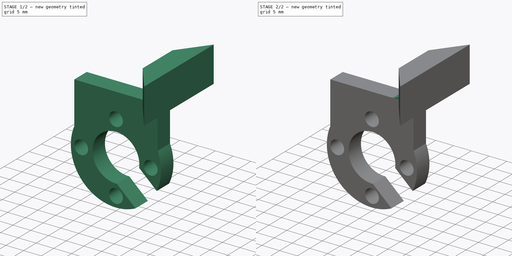
[diagram: build sequence overview — one tinted view per stage of 2, left to right]
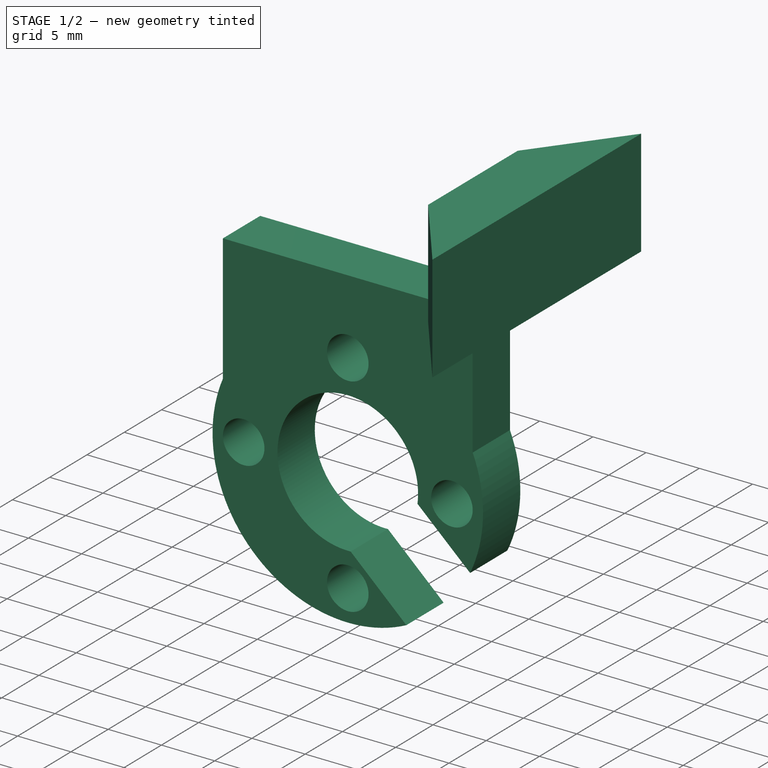
[diagram: stage 1 of 2 — iso view after this stage's code; geometry added in this stage tinted green]
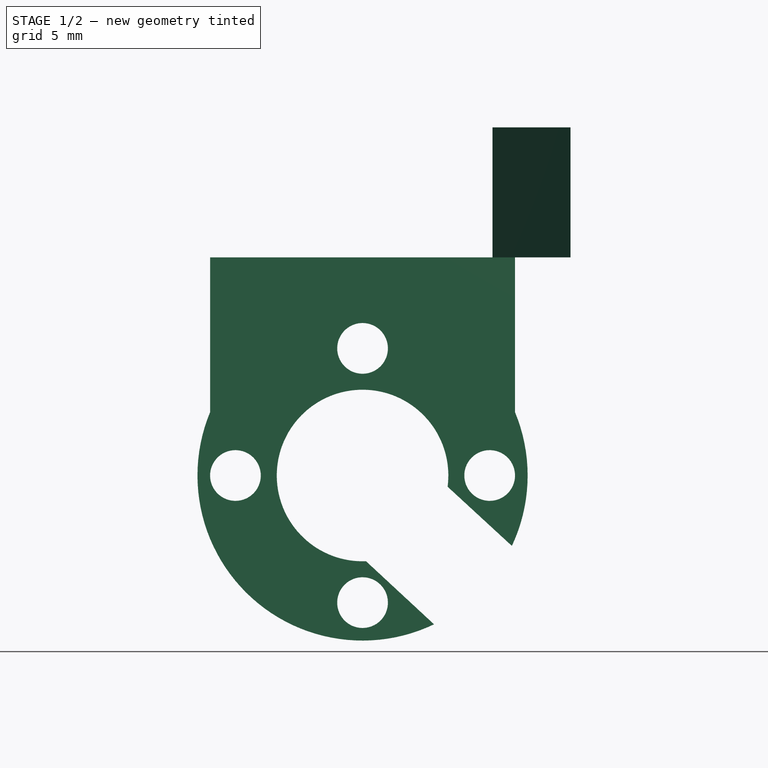
[diagram: stage 1 of 2 — front view after this stage's code; geometry added in this stage tinted green]
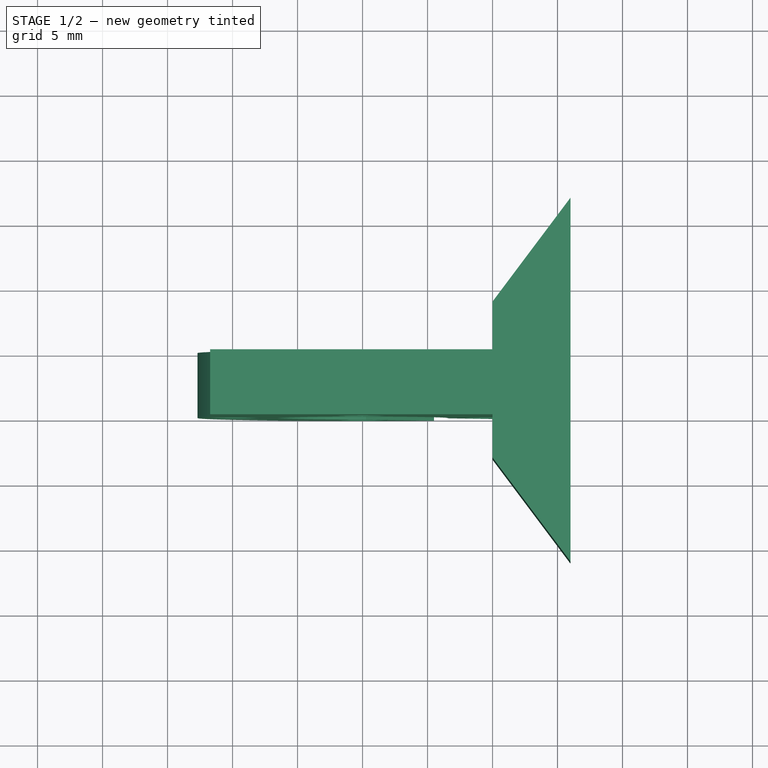
[diagram: stage 1 of 2 — top view after this stage's code; geometry added in this stage tinted green]
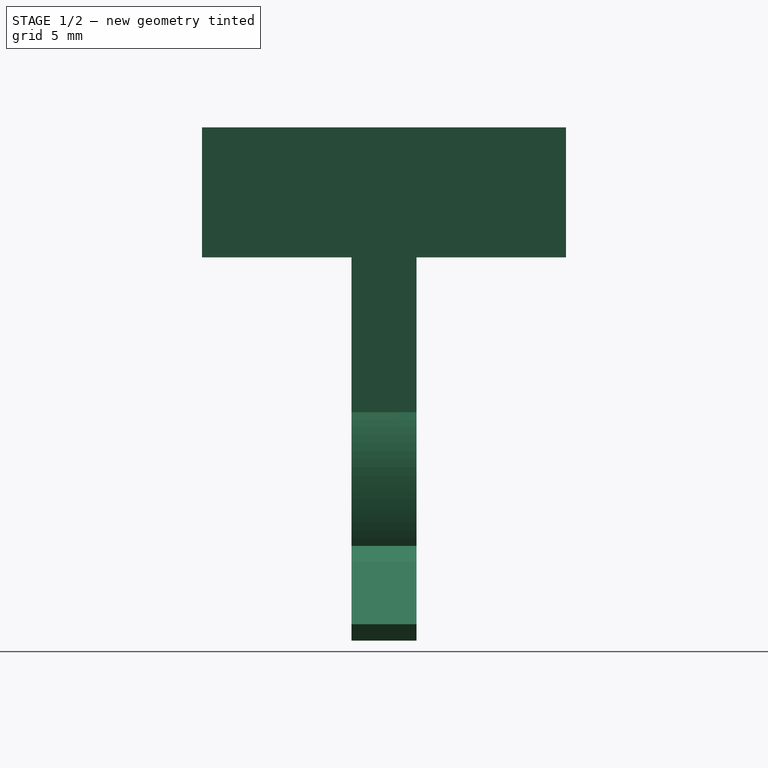
[diagram: stage 1 of 2 — right view after this stage's code; geometry added in this stage tinted green]
FCSTD DOCUMENT  (FreeCAD 0.18.4R)
Label: ActivadorLimitSwitch
License: All rights reserved
LicenseURL: http://en.wikipedia.org/wiki/All_rights_reserved
objects: Sketcher::SketchObject×2, PartDesign::Pad×2, PartDesign::Fillet×2, PartDesign::Body×1
note: 9 computed .brp shape members not serialized (recipe doc carries the construction recipe); baked Part::Feature solids carry a one-line shape summary decoded from their .brp

FEATURE [Sketcher::SketchObject] Sketch  label="Sketch_SoporteLeadScrew"
  MapMode = 5
  Placement = pos=(0,0,0) rot=(1,0,0;1.5708rad)
  Support = -> [XZ_Plane]
  expr: Constraints[28] = 25.4 / 4 + 0.25
  expr: Constraints[15] = 3.4 / 2 + 0.25
  expr: Constraints[0] = 25.4 / 2
  sketch-geometry (20):
    g0: ArcOfCircle CenterX=0 CenterY=0 CenterZ=0 NormalX=0 NormalY=0 NormalZ=1 AngleXU=0 Radius=6.6 StartAngle=6.15215 EndAngle=11.0361
    g1: ArcOfCircle CenterX=0 CenterY=0 CenterZ=0 NormalX=0 NormalY=0 NormalZ=1 AngleXU=0 Radius=12.7 StartAngle=2.74802 EndAngle=5.16023
    g2: LineSegment [constr] StartX=0 StartY=9.779 StartZ=0 EndX=-9.779 EndY=-1.8e-15 EndZ=0
    g3: LineSegment [constr] StartX=-9.779 StartY=-1.8e-15 StartZ=0 EndX=0 EndY=-9.779 EndZ=0
    g4: LineSegment [constr] StartX=3e-16 StartY=-9.779 StartZ=0 EndX=9.779 EndY=-1.8e-15 EndZ=0
    g5: LineSegment [constr] StartX=9.779 StartY=-1.8e-15 StartZ=0 EndX=0 EndY=9.779 EndZ=0
    g6: Circle [constr] CenterX=0 CenterY=0 CenterZ=0 NormalX=0 NormalY=0 NormalZ=1 AngleXU=0 Radius=9.779
    g7: Circle CenterX=0 CenterY=9.779 CenterZ=0 NormalX=0 NormalY=0 NormalZ=1 AngleXU=0 Radius=1.95
    g8: Circle CenterX=-9.779 CenterY=-1.8e-15 CenterZ=0 NormalX=0 NormalY=0 NormalZ=1 AngleXU=0 Radius=1.95
    g9: Circle CenterX=9.779 CenterY=-1.8e-15 CenterZ=0 NormalX=0 NormalY=0 NormalZ=1 AngleXU=0 Radius=1.95
    g10: Circle CenterX=3e-16 CenterY=-9.779 CenterZ=0 NormalX=0 NormalY=0 NormalZ=1 AngleXU=0 Radius=1.95
    g11: LineSegment StartX=11.729 StartY=4.87038 StartZ=0 EndX=11.729 EndY=16.779 EndZ=0
    g12: LineSegment StartX=11.729 StartY=16.779 StartZ=0 EndX=-11.729 EndY=16.779 EndZ=0
    g13: LineSegment StartX=-11.729 StartY=16.779 StartZ=0 EndX=-11.729 EndY=4.87038 EndZ=0
    g14: Circle [constr] CenterX=0 CenterY=0 CenterZ=0 NormalX=0 NormalY=0 NormalZ=1 AngleXU=0 Radius=12.7
    g15: LineSegment [constr] StartX=11.729 StartY=4.87038 StartZ=0 EndX=11.729 EndY=-1.96812 EndZ=0
    g16: LineSegment [constr] StartX=-11.729 StartY=4.87038 StartZ=0 EndX=-11.729 EndY=-0.590766 EndZ=0
    g17: LineSegment StartX=6.54342 StartY=-0.862387 StartZ=0 EndX=11.4876 EndY=-5.41516 EndZ=0
    g18: LineSegment StartX=0.267125 StartY=-6.59459 StartZ=0 EndX=5.49934 EndY=-11.4476 EndZ=0
    g19: ArcOfCircle CenterX=0 CenterY=0 CenterZ=0 NormalX=0 NormalY=0 NormalZ=1 AngleXU=0 Radius=12.7 StartAngle=5.84269 EndAngle=6.67676
  constraints (52):
    c: Radius(g1) = 12.7
    c: Coincident(g2,g3)
    c: Coincident(g3,g4)
    c: Coincident(g4,g5)
    c: Coincident(g5,g2)
    c: Equal(g2,g3)
    c: Equal(g2,g4)
    c: Equal(g2,g5)
    c: PointOnObject(g2,g6)
    c: PointOnObject(g3,g6)
    c: PointOnObject(g4,g6)
    c: PointOnObject(g5,g6)
    c: Coincident(g6,g0)
    c: PointOnObject(g2,g-2)
    c: Coincident(g7,g2)
    c: Radius(g7) = 1.95
    c: Coincident(g10,g3)
    c: Equal(g8,g10)
    c: Vertical(g11)
    c: Vertical(g13)
    c: Coincident(g1,g13)
    c: Coincident(g19,g11)
    c: Coincident(g8,g2)
    c: Coincident(g15,g19)
    c: Vertical(g15)
    c: Coincident(g0,g-1)
    c: Coincident(g1,g0)
    c: Equal(g14,g1)
    c: Radius(g0) = 6.6
    c: DistanceY(g3,g7) = 19.558
    c: Equal(g5,g2)
    c: Coincident(g0,g14)
    c: Coincident(g9,g4)
    c: Tangent(g15,g9)
    c: Coincident(g16,g1)
    c: Vertical(g16)
    c: Equal(g7,g8)
    c: Equal(g8,g9)
    c: Tangent(g16,g8)
    c: PointOnObject(g17,g14)
    c: Coincident(g0,g17)
    c: Coincident(g0,g18)
    c: Equal(g1,g19)
    c: Coincident(g1,g18)
    c: PointOnObject(g19,g17)
    c: Coincident(g1,g19)
    c: Distance(g0,g0) = 8.5
    c: Distance(g1,g17) = 8.5
    c: Coincident(g12,g13)
    c: Coincident(g12,g11)
    c: Horizontal(g12)
    c: DistanceY(g7,g11) = 7
FEATURE [PartDesign::Pad] Pad  label="Soporte_LeadScrew"
  Length = 5
  Length2 = 100
  Placement = pos=(0,0,0) rot=(1,0,0;1.5708rad)
  Profile = -> Sketch
  Type = 0
FEATURE [Sketcher::SketchObject] Sketch002  label="Sketch_ActivadorSwitches"
  ExternalGeometry = -> [Pad]
  MapMode = 5
  Placement = pos=(0,-3.7e-15,16.779) rot=(0,0,1;3.14159rad)
  Support = -> [Pad]
  sketch-geometry (15):
    g0: LineSegment [constr] StartX=-16 StartY=8.5 StartZ=0 EndX=-10 EndY=8.5 EndZ=0
    g1: LineSegment StartX=-10 StartY=8.5 StartZ=0 EndX=-10 EndY=-3.5 EndZ=0
    g2: LineSegment StartX=-16 StartY=-3.5 StartZ=0 EndX=-16 EndY=8.5 EndZ=0
    g3: LineSegment [constr] StartX=-16 StartY=-3.5 StartZ=0 EndX=-10 EndY=-3.5 EndZ=0
    g4: LineSegment [constr] StartX=-10 StartY=-3.5 StartZ=0 EndX=-10 EndY=-11.5 EndZ=0
    g5: LineSegment [constr] StartX=-10 StartY=-11.5 StartZ=0 EndX=-16 EndY=-11.5 EndZ=0
    g6: LineSegment [constr] StartX=-16 StartY=-11.5 StartZ=0 EndX=-16 EndY=-3.5 EndZ=0
    g7: LineSegment StartX=-16 StartY=-3.5 StartZ=0 EndX=-16 EndY=-11.5 EndZ=0
    g8: LineSegment StartX=-16 StartY=-11.5 StartZ=0 EndX=-10 EndY=-3.5 EndZ=0
    g9: LineSegment [constr] StartX=-16 StartY=8.5 StartZ=0 EndX=-10 EndY=8.5 EndZ=0
    g10: LineSegment [constr] StartX=-10 StartY=8.5 StartZ=0 EndX=-10 EndY=16.5 EndZ=0
    g11: LineSegment [constr] StartX=-10 StartY=16.5 StartZ=0 EndX=-16 EndY=16.5 EndZ=0
    g12: LineSegment [constr] StartX=-16 StartY=16.5 StartZ=0 EndX=-16 EndY=8.5 EndZ=0
    g13: LineSegment StartX=-16 StartY=8.5 StartZ=0 EndX=-16 EndY=16.5 EndZ=0
    g14: LineSegment StartX=-16 StartY=16.5 StartZ=0 EndX=-10 EndY=8.5 EndZ=0
  constraints (39):
    c: Coincident(g0,g1)
    c: Coincident(g2,g0)
    c: Vertical(g1)
    c: Vertical(g2)
    c: DistanceX(g0,g0) = 6
    c: DistanceX(g0,g-1) = 10
    c: DistanceY(g1,g1) = 12
    c: Equal(g1,g2)
    c: Coincident(g3,g4)
    c: Coincident(g4,g5)
    c: Coincident(g5,g6)
    c: Coincident(g6,g3)
    c: Horizontal(g5)
    c: Vertical(g4)
    c: Vertical(g6)
    c: Coincident(g3,g2)
    c: Coincident(g3,g1)
    c: Coincident(g7,g2)
    c: Coincident(g7,g5)
    c: Coincident(g8,g7)
    c: Coincident(g8,g1)
    c: Coincident(g9,g10)
    c: Coincident(g10,g11)
    c: Coincident(g11,g12)
    c: Coincident(g12,g9)
    c: Horizontal(g11)
    c: Vertical(g10)
    c: Vertical(g12)
    c: Coincident(g9,g0)
    c: Coincident(g9,g0)
    c: DistanceY(g-3,g0) = 3.5
    c: Horizontal(g0)
    c: Coincident(g13,g0)
    c: Coincident(g13,g11)
    c: Coincident(g14,g13)
    c: Coincident(g14,g0)
    c: DistanceY(g-4,g-4) = 5
    c: DistanceY(g10,g10) = 8
    c: Equal(g10,g4)
FEATURE [PartDesign::Pad] Pad001
  BaseFeature = -> Pad
  Length = 10
  Length2 = 100
  Placement = pos=(0,0,0) rot=(1,0,0;1.5708rad)
  Profile = -> Sketch002
  Type = 0
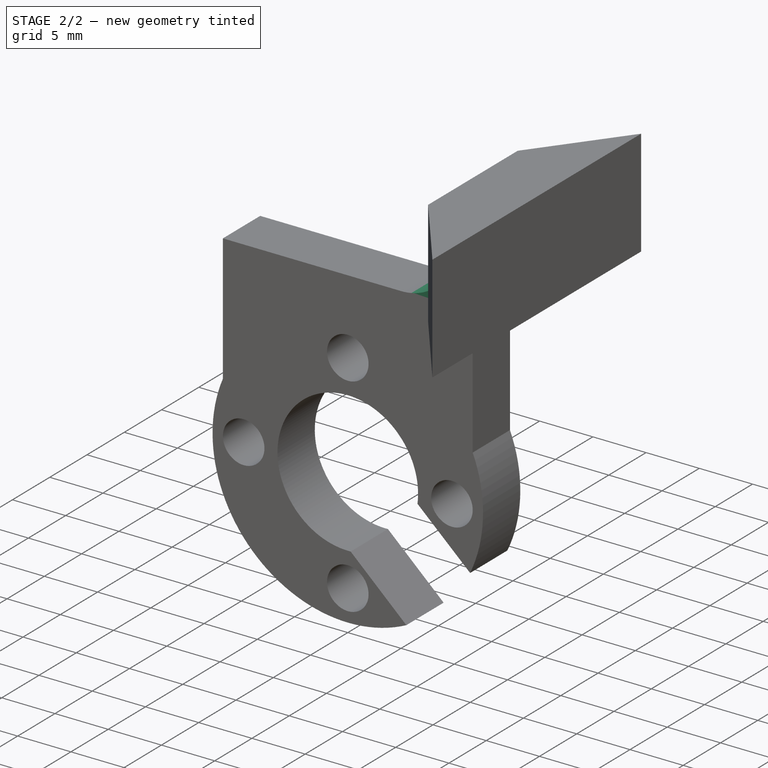
[diagram: stage 2 of 2 — iso view after this stage's code; geometry added in this stage tinted green]
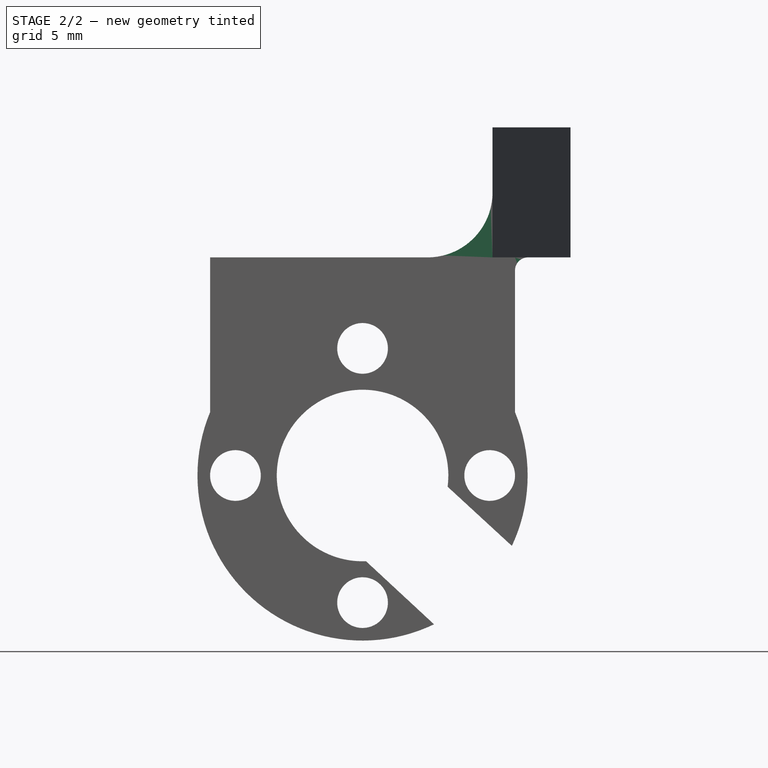
[diagram: stage 2 of 2 — front view after this stage's code; geometry added in this stage tinted green]
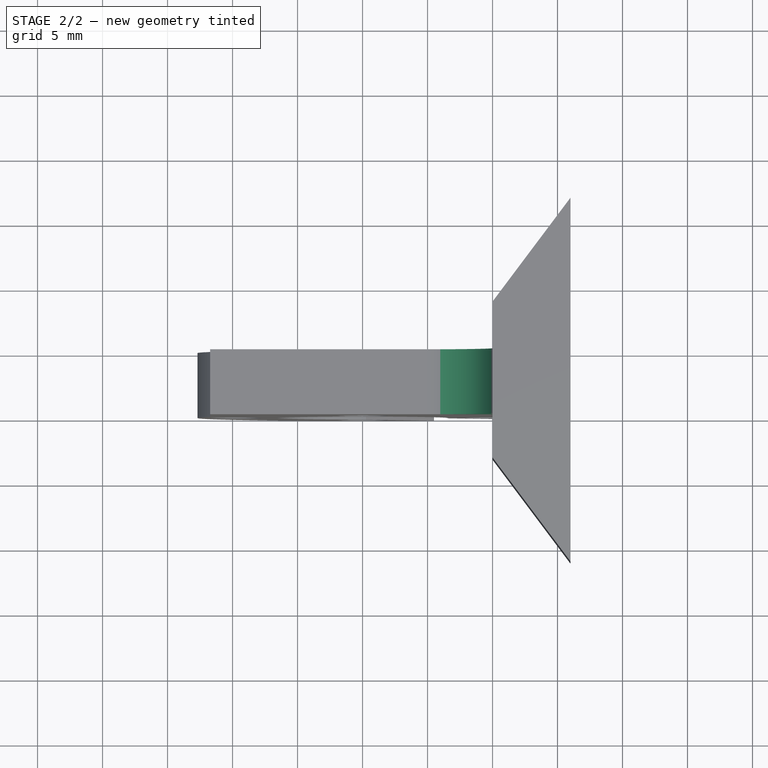
[diagram: stage 2 of 2 — top view after this stage's code; geometry added in this stage tinted green]
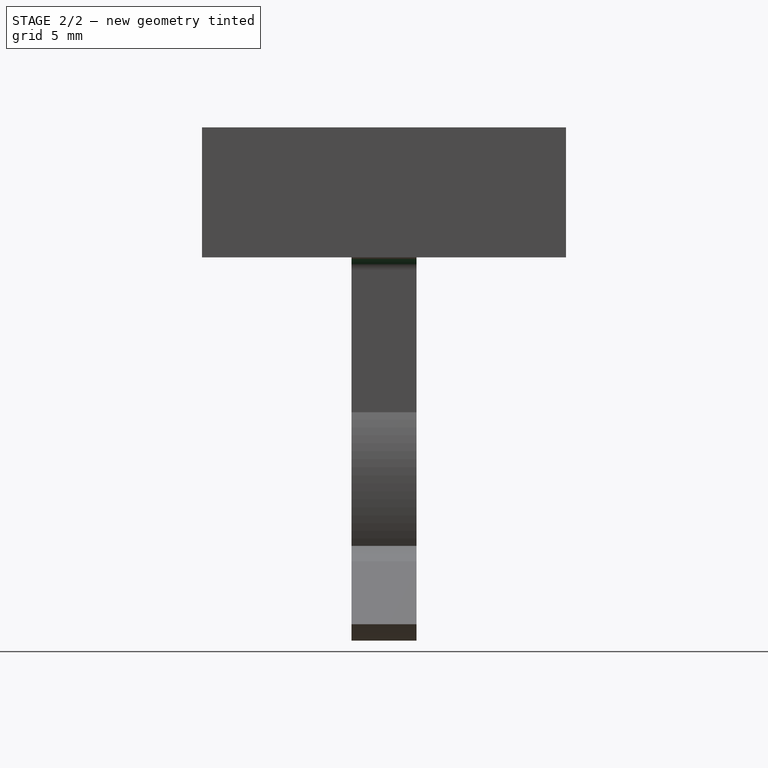
[diagram: stage 2 of 2 — right view after this stage's code; geometry added in this stage tinted green]
FEATURE [PartDesign::Fillet] Fillet
  Base = -> Pad001 [Edge32]
  BaseFeature = -> Pad001
  Placement = pos=(0,0,0) rot=(1,0,0;1.5708rad)
  Radius = 1
FEATURE [PartDesign::Fillet] Fillet001
  Base = -> Fillet [Edge38]
  BaseFeature = -> Fillet
  Placement = pos=(0,0,0) rot=(1,0,0;1.5708rad)
  Radius = 5
FEATURE [PartDesign::Body] Body
  Group = -> [Sketch,Pad,Sketch002,Pad001,Fillet,Fillet001]
  Origin = -> Origin
  Tip = -> Fillet001
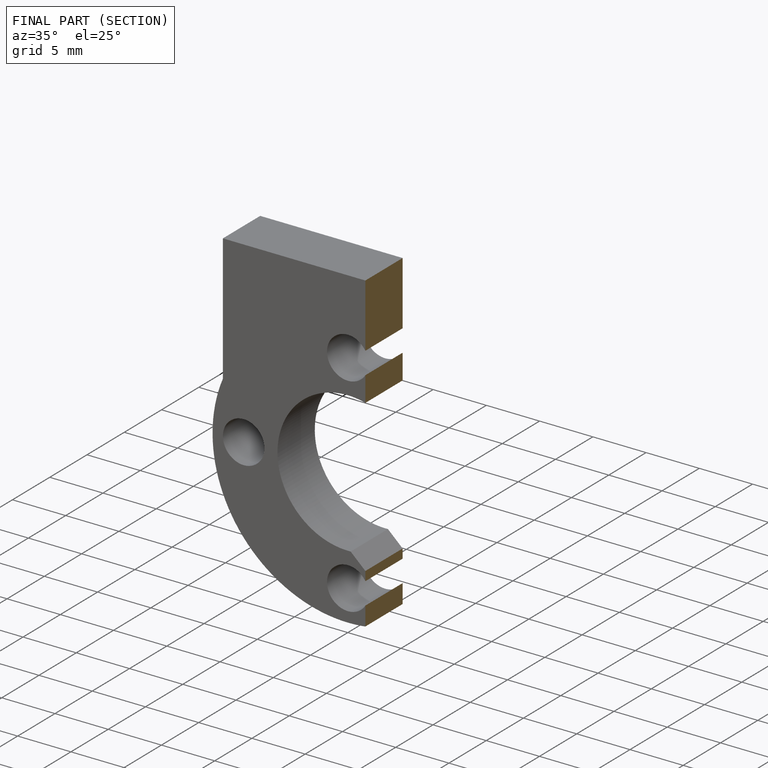
[diagram: finished part — half-section view (interior)]
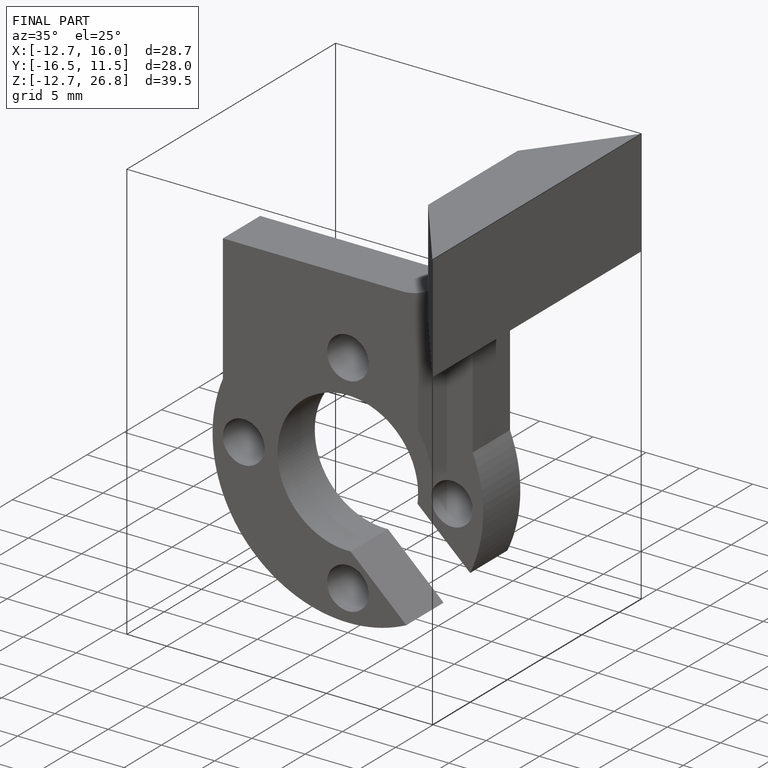
[diagram: finished part — iso view with bounding-box wireframe]
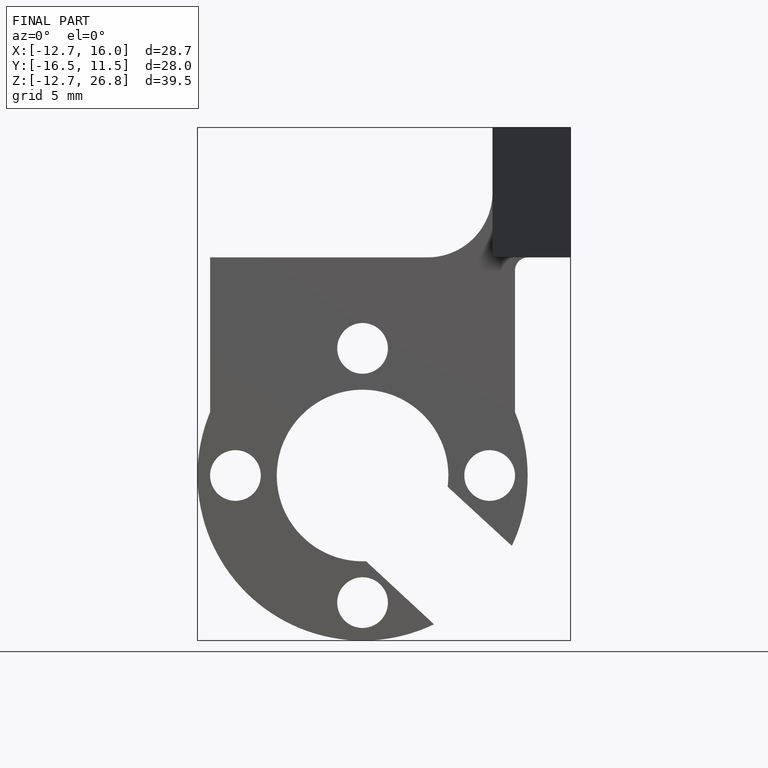
[diagram: finished part — front view with bounding-box wireframe]
